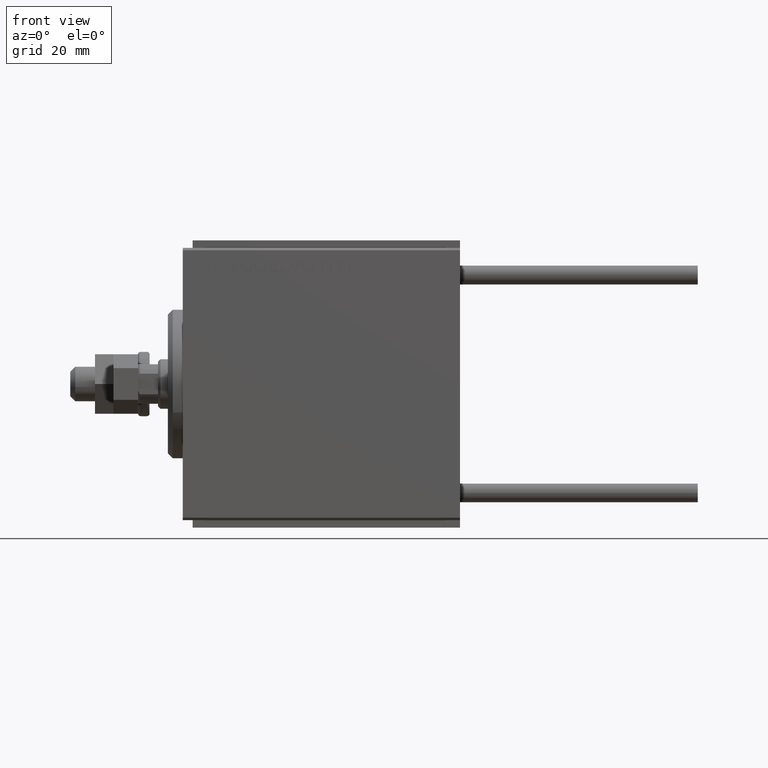
[diagram: clean part render]
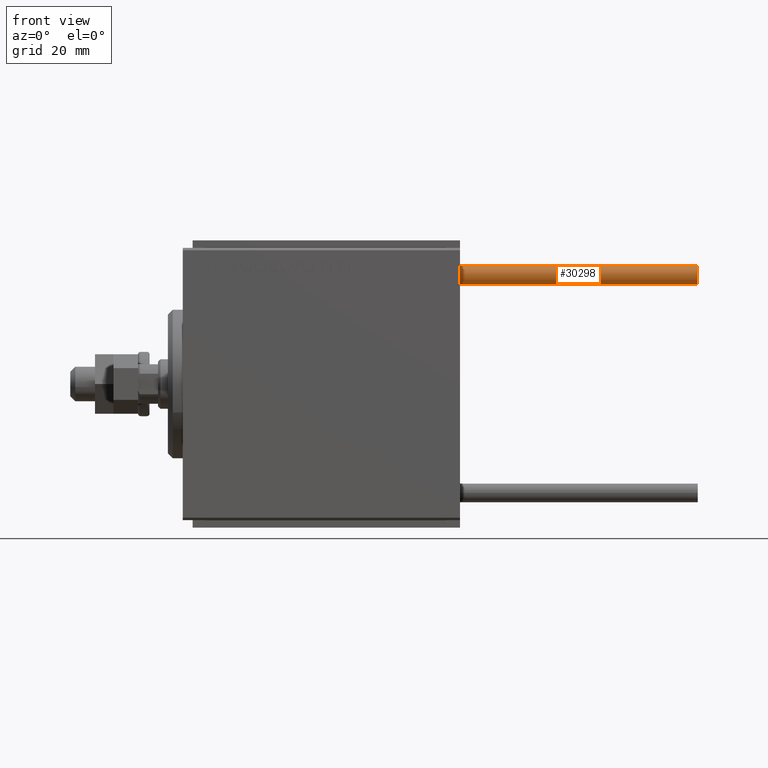
[diagram: same view with one face highlighted and labeled with its STEP entity id]
A machine part, front view. The second image highlights one B-rep face of the part: STEP entity #30298.
In plain terms, the highlighted cylindrical surface (edge-blend (fillet) strip) has radius 1.9 mm, axis along (-1, -0, 0).
Its self-contained STEP definition (entity closure, byte-faithful):
#335 = AXIS2_PLACEMENT_3D ( 'NONE', #10665, #33771, #49287 ) ;
#1374 = VERTEX_POINT ( 'NONE', #27481 ) ;
#4250 = ORIENTED_EDGE ( 'NONE', *, *, #44020, .T. ) ;
#6031 = CARTESIAN_POINT ( 'NONE',  ( -1.899999999999999467, 0.000000000000000000, 0.000000000000000000 ) ) ;
#9531 = AXIS2_PLACEMENT_3D ( 'NONE', #33236, #45442, #33746 ) ;
#10106 = AXIS2_PLACEMENT_3D ( 'NONE', #34942, #16152, #15908 ) ;
#10665 = CARTESIAN_POINT ( 'NONE',  ( 0.000000000000000000, 0.000000000000000000, 48.00000000000000000 ) ) ;
#11414 = LINE ( 'NONE', #30708, #49766 ) ;
#11497 = VERTEX_POINT ( 'NONE', #18010 ) ;
#12513 = VERTEX_POINT ( 'NONE', #48285 ) ;
#12536 = VECTOR ( 'NONE', #19622, 1000.000000000000000 ) ;
#15877 = EDGE_LOOP ( 'NONE', ( #23639, #30688, #38141, #4250 ) ) ;
#15908 = DIRECTION ( 'NONE',  ( 1.000000000000000000, 0.000000000000000000, 0.000000000000000000 ) ) ;
#16152 = DIRECTION ( 'NONE',  ( 0.000000000000000000, 0.000000000000000000, 1.000000000000000000 ) ) ;
#18010 = CARTESIAN_POINT ( 'NONE',  ( 1.899999999999999467, 2.326828918379970872E-16, 0.000000000000000000 ) ) ;
#18284 = CYLINDRICAL_SURFACE ( 'NONE', #335, 1.899999999999999467 ) ;
#19540 = DIRECTION ( 'NONE',  ( -0.000000000000000000, -0.000000000000000000, -1.000000000000000000 ) ) ;
#19622 = DIRECTION ( 'NONE',  ( -0.000000000000000000, -0.000000000000000000, -1.000000000000000000 ) ) ;
#19818 = EDGE_CURVE ( 'NONE', #1374, #11497, #11414, .T. ) ;
#22835 = EDGE_CURVE ( 'NONE', #12513, #1374, #48969, .T. ) ;
#23639 = ORIENTED_EDGE ( 'NONE', *, *, #19818, .F. ) ;
#25263 = VERTEX_POINT ( 'NONE', #6031 ) ;
#27472 = CARTESIAN_POINT ( 'NONE',  ( -1.899999999999999467, 0.000000000000000000, 48.00000000000000000 ) ) ;
#27481 = CARTESIAN_POINT ( 'NONE',  ( 1.899999999999999467, 2.326828918379970872E-16, 48.00000000000000000 ) ) ;
#28996 = CIRCLE ( 'NONE', #9531, 1.899999999999999467 ) ;
#30298 = ADVANCED_FACE ( 'NONE', ( #39542 ), #18284, .T. ) ;
#30688 = ORIENTED_EDGE ( 'NONE', *, *, #22835, .F. ) ;
#30708 = CARTESIAN_POINT ( 'NONE',  ( 1.899999999999999467, 2.326828918379970872E-16, 48.00000000000000000 ) ) ;
#31115 = EDGE_CURVE ( 'NONE', #12513, #25263, #38944, .T. ) ;
#33236 = CARTESIAN_POINT ( 'NONE',  ( 0.000000000000000000, 0.000000000000000000, 0.000000000000000000 ) ) ;
#33746 = DIRECTION ( 'NONE',  ( 1.000000000000000000, 0.000000000000000000, 0.000000000000000000 ) ) ;
#33771 = DIRECTION ( 'NONE',  ( -0.000000000000000000, -0.000000000000000000, -1.000000000000000000 ) ) ;
#34942 = CARTESIAN_POINT ( 'NONE',  ( 0.000000000000000000, 0.000000000000000000, 48.00000000000000000 ) ) ;
#38141 = ORIENTED_EDGE ( 'NONE', *, *, #31115, .T. ) ;
#38944 = LINE ( 'NONE', #27472, #12536 ) ;
#39542 = FACE_OUTER_BOUND ( 'NONE', #15877, .T. ) ;
#44020 = EDGE_CURVE ( 'NONE', #25263, #11497, #28996, .T. ) ;
#45442 = DIRECTION ( 'NONE',  ( 0.000000000000000000, 0.000000000000000000, 1.000000000000000000 ) ) ;
#48285 = CARTESIAN_POINT ( 'NONE',  ( -1.899999999999999467, 0.000000000000000000, 48.00000000000000000 ) ) ;
#48969 = CIRCLE ( 'NONE', #10106, 1.899999999999999467 ) ;
#49287 = DIRECTION ( 'NONE',  ( -1.000000000000000000, 0.000000000000000000, 0.000000000000000000 ) ) ;
#49766 = VECTOR ( 'NONE', #19540, 1000.000000000000000 ) ;